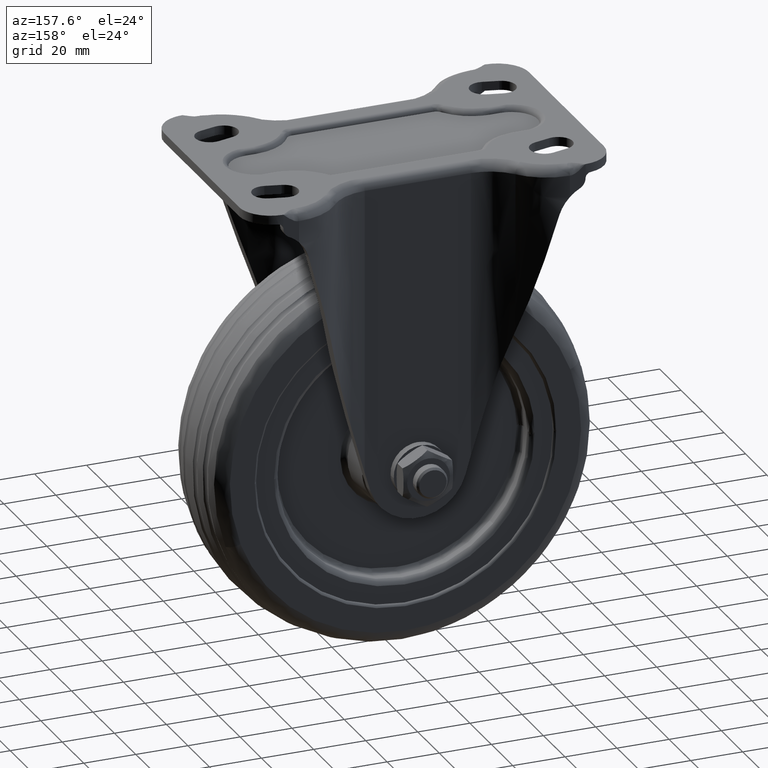
[diagram: clean part render]
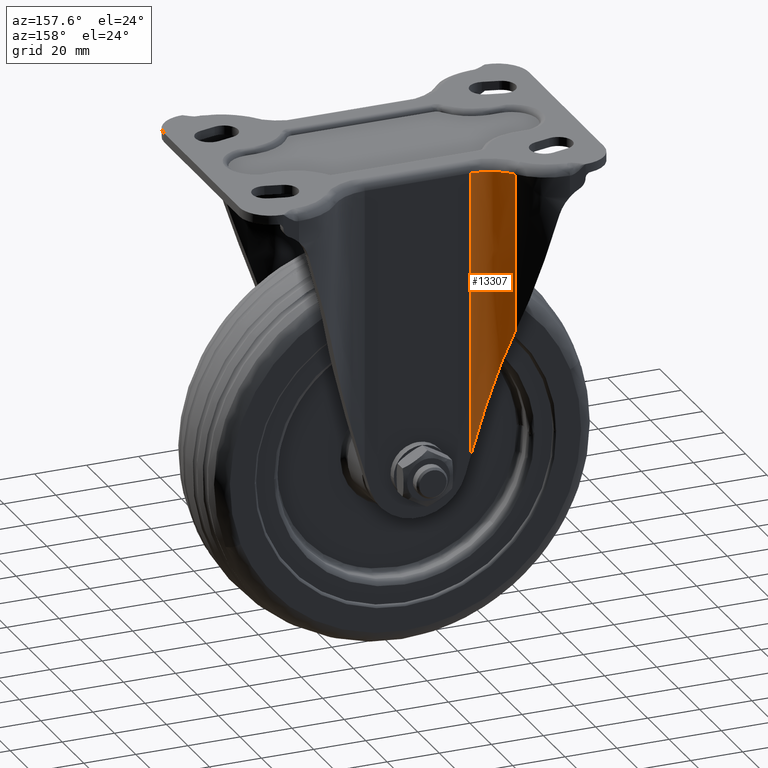
[diagram: same view with one face highlighted and labeled with its STEP entity id]
A machine part, auxiliary view. The second image highlights one B-rep face of the part: STEP entity #13307.
In plain terms, the highlighted face is a freeform B-spline surface patch.
Its self-contained STEP definition (entity closure, byte-faithful):
#11374=CARTESIAN_POINT('',(-20.381176492475149,31.500000000000000,111.500000000000000));
#11375=VERTEX_POINT('',#11374);
#11422=CARTESIAN_POINT('',(-34.609647070861449,38.475000000000001,111.500000000000000));
#11423=VERTEX_POINT('',#11422);
#11453=CARTESIAN_POINT('',(-34.609647070861350,38.475000000000087,111.500000000000000));
#11454=CARTESIAN_POINT('',(-29.205034215505371,31.500000000000004,111.499999999999990));
#11455=CARTESIAN_POINT('',(-20.381176492475149,31.500000000000000,111.500000000000000));
#11463=(BOUNDED_CURVE()B_SPLINE_CURVE(2,(#11453,#11454,#11455),.UNSPECIFIED.,.F.,.U.)CURVE()GEOMETRIC_REPRESENTATION_ITEM()QUASI_UNIFORM_CURVE()RATIONAL_B_SPLINE_CURVE((1.0,0.897914249803397,1.0))REPRESENTATION_ITEM(''));
#11464=EDGE_CURVE('',#11423,#11375,#11463,.T.);
#12861=CARTESIAN_POINT('',(-34.609647070861449,38.475000000000001,50.614946432324487));
#12862=VERTEX_POINT('',#12861);
#12863=CARTESIAN_POINT('',(-20.381176492475149,31.500000000000000,1.996358825266830));
#12864=VERTEX_POINT('',#12863);
#12865=CARTESIAN_POINT('',(-34.609647070861449,38.475000000000001,50.614946432324487));
#12866=CARTESIAN_POINT('',(-29.205034215505474,31.499999999999996,32.147420907163337));
#12867=CARTESIAN_POINT('',(-20.381176492475149,31.500000000000000,1.996358825266944));
#12875=(BOUNDED_CURVE()B_SPLINE_CURVE(2,(#12865,#12866,#12867),.UNSPECIFIED.,.F.,.U.)CURVE()GEOMETRIC_REPRESENTATION_ITEM()QUASI_UNIFORM_CURVE()RATIONAL_B_SPLINE_CURVE((1.0,0.897914249803395,1.0))REPRESENTATION_ITEM(''));
#12876=EDGE_CURVE('',#12862,#12864,#12875,.T.);
#13264=CARTESIAN_POINT('',(-20.381176492475149,31.500000000000000,1.996358825266830));
#13265=CARTESIAN_POINT('',(-20.381176492475149,31.500000000000000,111.500000000000000));
#13266=QUASI_UNIFORM_CURVE('',1,(#13264,#13265),.UNSPECIFIED.,.F.,.U.);
#13267=EDGE_CURVE('',#12864,#11375,#13266,.T.);
#13283=CARTESIAN_POINT('',(-19.668067822711791,31.514131212946420,-0.741232204101502));
#13284=CARTESIAN_POINT('',(-19.668067822711791,31.514131212946420,114.306030805102490));
#13285=CARTESIAN_POINT('',(-29.437281957356401,31.126798725499150,-0.741232204101501));
#13286=CARTESIAN_POINT('',(-29.437281957356401,31.126798725499150,114.306030805102520));
#13287=CARTESIAN_POINT('',(-35.080296052788782,39.110780387747859,-0.741232204101502));
#13288=CARTESIAN_POINT('',(-35.080296052788782,39.110780387747859,114.306030805102540));
#13296=(BOUNDED_SURFACE()B_SPLINE_SURFACE(1,2,((#13283,#13285,#13287),(#13284,#13286,#13288)),.UNSPECIFIED.,.F.,.F.,.U.)B_SPLINE_SURFACE_WITH_KNOTS((2,2),(3,3),(0.0,115.047263009204000),(0.0,18.291638670166900),.UNSPECIFIED.)GEOMETRIC_REPRESENTATION_ITEM()RATIONAL_B_SPLINE_SURFACE(((1.0,0.874888927853371,0.991250560383727),(1.0,0.874888927853371,0.991250560383727)))REPRESENTATION_ITEM('')SURFACE());
#13297=CARTESIAN_POINT('',(-34.609647070861449,38.475000000000001,50.614946432324487));
#13298=CARTESIAN_POINT('',(-34.609647070861449,38.475000000000001,111.500000000000000));
#13299=QUASI_UNIFORM_CURVE('',1,(#13297,#13298),.UNSPECIFIED.,.F.,.U.);
#13300=EDGE_CURVE('',#12862,#11423,#13299,.T.);
#13301=ORIENTED_EDGE('',*,*,#13300,.T.);
#13302=ORIENTED_EDGE('',*,*,#11464,.T.);
#13303=ORIENTED_EDGE('',*,*,#13267,.F.);
#13304=ORIENTED_EDGE('',*,*,#12876,.F.);
#13305=EDGE_LOOP('',(#13301,#13302,#13303,#13304));
#13306=FACE_OUTER_BOUND('',#13305,.T.);
#13307=ADVANCED_FACE('',(#13306),#13296,.F.);